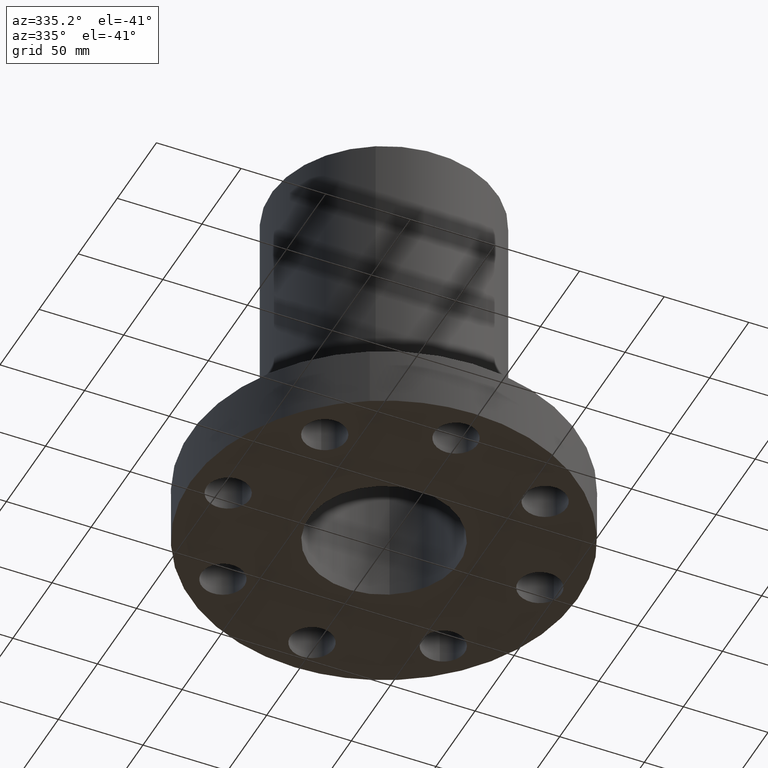
[diagram: clean part render]
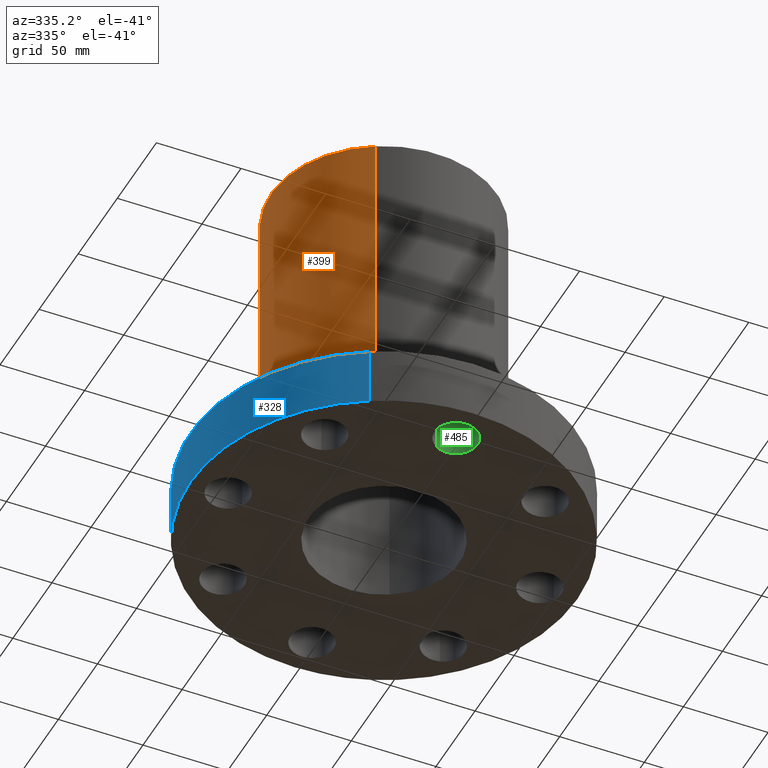
[diagram: same view with three faces highlighted in distinct colors, each labeled with its STEP entity id]
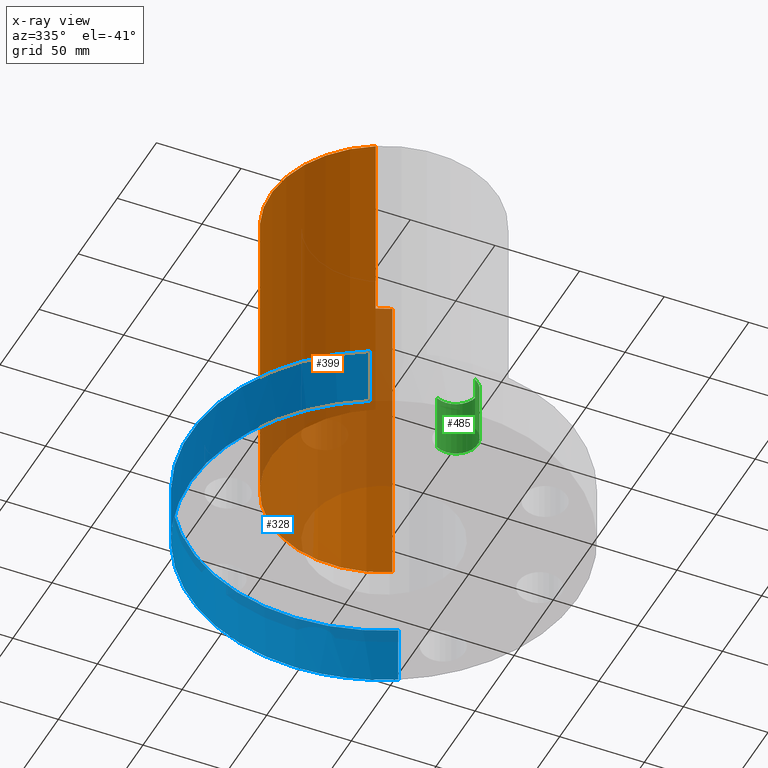
[diagram: x-ray of the same camera — body ghosted, the three highlighted faces saturated]
A machine part, auxiliary view with three faces highlighted in distinct colors.
The next image is the same camera in x-ray (body ghosted, the three faces saturated) — at least one of them is partly hidden behind the body in this view.
Their STEP definitions:

[orange] entity #399 — the highlighted cylindrical surface (partial cylindrical patch) has radius 66.675 mm, axis along (0, 0, -1).
#121=AXIS2_PLACEMENT_3D('Circle Axis2P3D',#119,#120,$) ;
#360=AXIS2_PLACEMENT_3D('Cylinder Axis2P3D',#357,#358,#359) ;
#390=AXIS2_PLACEMENT_3D('Circle Axis2P3D',#388,#389,$) ;
#119=CARTESIAN_POINT('Axis2P3D Location',(0.,0.,1.38000000001)) ;
#123=CARTESIAN_POINT('Vertex',(-1.25849203884,-2.30365422497,1.38000000001)) ;
#125=CARTESIAN_POINT('Vertex',(1.25849203884,2.30365422497,1.38000000001)) ;
#357=CARTESIAN_POINT('Axis2P3D Location',(0.,0.,4.25000000002)) ;
#362=CARTESIAN_POINT('Line Origine',(1.25849203884,2.30365422497,5.06500000002)) ;
#366=CARTESIAN_POINT('Vertex',(1.25849203884,2.30365422497,8.75000000004)) ;
#373=CARTESIAN_POINT('Vertex',(-1.25849203884,-2.30365422497,8.75000000004)) ;
#376=CARTESIAN_POINT('Line Origine',(-1.25849203884,-2.30365422497,5.06500000002)) ;
#388=CARTESIAN_POINT('Axis2P3D Location',(0.,0.,8.75000000003)) ;
#120=DIRECTION('Axis2P3D Direction',(0.,0.,-0.0393700787402)) ;
#358=DIRECTION('Axis2P3D Direction',(0.,0.,-0.0393700787402)) ;
#359=DIRECTION('Axis2P3D XDirection',(-0.0188750212049,-0.0345504945626,0.)) ;
#363=DIRECTION('Vector Direction',(0.,0.,-0.0393700787402)) ;
#377=DIRECTION('Vector Direction',(0.,0.,-0.0393700787402)) ;
#389=DIRECTION('Axis2P3D Direction',(0.,0.,-0.0393700787402)) ;
#364=VECTOR('Line Direction',#363,0.0393700787402) ;
#378=VECTOR('Line Direction',#377,0.0393700787402) ;
#394=ORIENTED_EDGE('',*,*,#127,.F.) ;
#395=ORIENTED_EDGE('',*,*,#380,.T.) ;
#396=ORIENTED_EDGE('',*,*,#392,.T.) ;
#397=ORIENTED_EDGE('',*,*,#368,.F.) ;
#399=ADVANCED_FACE('PartBody',(#398),#361,.T.) ;
#122=CIRCLE('generated circle',#121,2.62500000001) ;
#391=CIRCLE('generated circle',#390,2.62500000001) ;
#361=CYLINDRICAL_SURFACE('generated cylinder',#360,2.62500000001) ;
#127=EDGE_CURVE('',#124,#126,#122,.T.) ;
#368=EDGE_CURVE('',#126,#367,#365,.F.) ;
#380=EDGE_CURVE('',#124,#374,#379,.F.) ;
#392=EDGE_CURVE('',#374,#367,#391,.T.) ;
#393=EDGE_LOOP('',(#394,#395,#396,#397)) ;
#398=FACE_OUTER_BOUND('',#393,.T.) ;
#365=LINE('Line',#362,#364) ;
#379=LINE('Line',#376,#378) ;
#124=VERTEX_POINT('',#123) ;
#126=VERTEX_POINT('',#125) ;
#367=VERTEX_POINT('',#366) ;
#374=VERTEX_POINT('',#373) ;

[blue] entity #328 — the highlighted cylindrical surface (partial cylindrical patch) has radius 114.3 mm, axis along (0, 0, -1).
#108=AXIS2_PLACEMENT_3D('Circle Axis2P3D',#106,#107,$) ;
#285=AXIS2_PLACEMENT_3D('Cylinder Axis2P3D',#282,#283,#284) ;
#289=AXIS2_PLACEMENT_3D('Circle Axis2P3D',#287,#288,$) ;
#298=AXIS2_PLACEMENT_3D('Circle Axis2P3D',#296,#297,$) ;
#305=AXIS2_PLACEMENT_3D('Circle Axis2P3D',#303,#304,$) ;
#101=CARTESIAN_POINT('Vertex',(2.15741492373,3.94912152852,1.38000000001)) ;
#103=CARTESIAN_POINT('Vertex',(-2.15741492373,-3.94912152852,1.38000000001)) ;
#106=CARTESIAN_POINT('Axis2P3D Location',(0.,0.,1.38000000001)) ;
#282=CARTESIAN_POINT('Axis2P3D Location',(0.,0.,4.25000000002)) ;
#287=CARTESIAN_POINT('Axis2P3D Location',(0.,0.,5.59482469102E-016)) ;
#291=CARTESIAN_POINT('Vertex',(-1.72285591452E-015,4.50000000002,0.)) ;
#293=CARTESIAN_POINT('Vertex',(2.15741492373,3.94912152852,5.59482469102E-016)) ;
#296=CARTESIAN_POINT('Axis2P3D Location',(0.,0.,5.59482469102E-016)) ;
#300=CARTESIAN_POINT('Vertex',(-4.50000000002,-2.54949250395E-015,0.)) ;
#303=CARTESIAN_POINT('Axis2P3D Location',(0.,0.,5.59482469102E-016)) ;
#307=CARTESIAN_POINT('Vertex',(-2.15741492373,-3.94912152852,5.59482469102E-016)) ;
#310=CARTESIAN_POINT('Line Origine',(-2.15741492373,-3.94912152852,0.690000000003)) ;
#315=CARTESIAN_POINT('Line Origine',(2.15741492373,3.94912152852,0.690000000003)) ;
#107=DIRECTION('Axis2P3D Direction',(0.,0.,-0.0393700787402)) ;
#283=DIRECTION('Axis2P3D Direction',(0.,0.,-0.0393700787402)) ;
#284=DIRECTION('Axis2P3D XDirection',(0.0188750212049,0.0345504945626,0.)) ;
#288=DIRECTION('Axis2P3D Direction',(0.,0.,-0.0393700787402)) ;
#297=DIRECTION('Axis2P3D Direction',(0.,0.,-0.0393700787402)) ;
#304=DIRECTION('Axis2P3D Direction',(0.,0.,-0.0393700787402)) ;
#311=DIRECTION('Vector Direction',(0.,0.,-0.0393700787402)) ;
#316=DIRECTION('Vector Direction',(0.,0.,-0.0393700787402)) ;
#312=VECTOR('Line Direction',#311,0.0393700787402) ;
#317=VECTOR('Line Direction',#316,0.0393700787402) ;
#321=ORIENTED_EDGE('',*,*,#295,.F.) ;
#322=ORIENTED_EDGE('',*,*,#302,.F.) ;
#323=ORIENTED_EDGE('',*,*,#309,.F.) ;
#324=ORIENTED_EDGE('',*,*,#314,.T.) ;
#325=ORIENTED_EDGE('',*,*,#110,.T.) ;
#326=ORIENTED_EDGE('',*,*,#319,.F.) ;
#328=ADVANCED_FACE('PartBody',(#327),#286,.T.) ;
#109=CIRCLE('generated circle',#108,4.50000000002) ;
#290=CIRCLE('generated circle',#289,4.50000000002) ;
#299=CIRCLE('generated circle',#298,4.50000000002) ;
#306=CIRCLE('generated circle',#305,4.50000000002) ;
#286=CYLINDRICAL_SURFACE('generated cylinder',#285,4.50000000002) ;
#110=EDGE_CURVE('',#104,#102,#109,.T.) ;
#295=EDGE_CURVE('',#292,#294,#290,.T.) ;
#302=EDGE_CURVE('',#301,#292,#299,.T.) ;
#309=EDGE_CURVE('',#308,#301,#306,.T.) ;
#314=EDGE_CURVE('',#308,#104,#313,.F.) ;
#319=EDGE_CURVE('',#294,#102,#318,.F.) ;
#320=EDGE_LOOP('',(#321,#322,#323,#324,#325,#326)) ;
#327=FACE_OUTER_BOUND('',#320,.T.) ;
#313=LINE('Line',#310,#312) ;
#318=LINE('Line',#315,#317) ;
#102=VERTEX_POINT('',#101) ;
#104=VERTEX_POINT('',#103) ;
#292=VERTEX_POINT('',#291) ;
#294=VERTEX_POINT('',#293) ;
#301=VERTEX_POINT('',#300) ;
#308=VERTEX_POINT('',#307) ;

[green] entity #485 — the highlighted cylindrical surface (edge-blend (fillet) strip) has radius 12.7 mm, axis along (-0, 0, 1).
#157=AXIS2_PLACEMENT_3D('Circle Axis2P3D',#155,#156,$) ;
#446=AXIS2_PLACEMENT_3D('Cylinder Axis2P3D',#443,#444,#445) ;
#476=AXIS2_PLACEMENT_3D('Circle Axis2P3D',#474,#475,$) ;
#155=CARTESIAN_POINT('Axis2P3D Location',(1.39870617276E-016,-3.62500000001,1.38000000001)) ;
#159=CARTESIAN_POINT('Vertex',(-0.239712769303,-3.18620871907,1.38000000001)) ;
#161=CARTESIAN_POINT('Vertex',(0.239712769303,-4.06379128096,1.38000000001)) ;
#443=CARTESIAN_POINT('Axis2P3D Location',(-3.37515236756E-016,-3.62500000001,0.00393700787402)) ;
#448=CARTESIAN_POINT('Line Origine',(-0.239712769303,-3.18620871907,0.690000000003)) ;
#452=CARTESIAN_POINT('Vertex',(-0.239712769303,-3.18620871907,2.2401153548E-016)) ;
#455=CARTESIAN_POINT('Line Origine',(0.239712769303,-4.06379128096,0.690000000003)) ;
#459=CARTESIAN_POINT('Vertex',(0.239712769303,-4.06379128096,2.2401153548E-016)) ;
#474=CARTESIAN_POINT('Axis2P3D Location',(-3.37515236756E-016,-3.62500000001,0.)) ;
#156=DIRECTION('Axis2P3D Direction',(0.,0.,-0.0393700787402)) ;
#444=DIRECTION('Axis2P3D Direction',(-0.,0.,0.0393700787402)) ;
#445=DIRECTION('Axis2P3D XDirection',(0.0188750212049,-0.0345504945626,0.)) ;
#449=DIRECTION('Vector Direction',(0.,0.,0.0393700787402)) ;
#456=DIRECTION('Vector Direction',(0.,0.,0.0393700787402)) ;
#475=DIRECTION('Axis2P3D Direction',(-0.,0.,0.0393700787402)) ;
#450=VECTOR('Line Direction',#449,0.0393700787402) ;
#457=VECTOR('Line Direction',#456,0.0393700787402) ;
#480=ORIENTED_EDGE('',*,*,#461,.F.) ;
#481=ORIENTED_EDGE('',*,*,#163,.F.) ;
#482=ORIENTED_EDGE('',*,*,#454,.T.) ;
#483=ORIENTED_EDGE('',*,*,#478,.T.) ;
#485=ADVANCED_FACE('PartBody',(#484),#447,.F.) ;
#158=CIRCLE('generated circle',#157,0.500000000002) ;
#477=CIRCLE('generated circle',#476,0.500000000002) ;
#447=CYLINDRICAL_SURFACE('generated cylinder',#446,0.500000000002) ;
#163=EDGE_CURVE('',#160,#162,#158,.T.) ;
#454=EDGE_CURVE('',#160,#453,#451,.F.) ;
#461=EDGE_CURVE('',#162,#460,#458,.F.) ;
#478=EDGE_CURVE('',#453,#460,#477,.F.) ;
#479=EDGE_LOOP('',(#480,#481,#482,#483)) ;
#484=FACE_OUTER_BOUND('',#479,.T.) ;
#451=LINE('Line',#448,#450) ;
#458=LINE('Line',#455,#457) ;
#160=VERTEX_POINT('',#159) ;
#162=VERTEX_POINT('',#161) ;
#453=VERTEX_POINT('',#452) ;
#460=VERTEX_POINT('',#459) ;